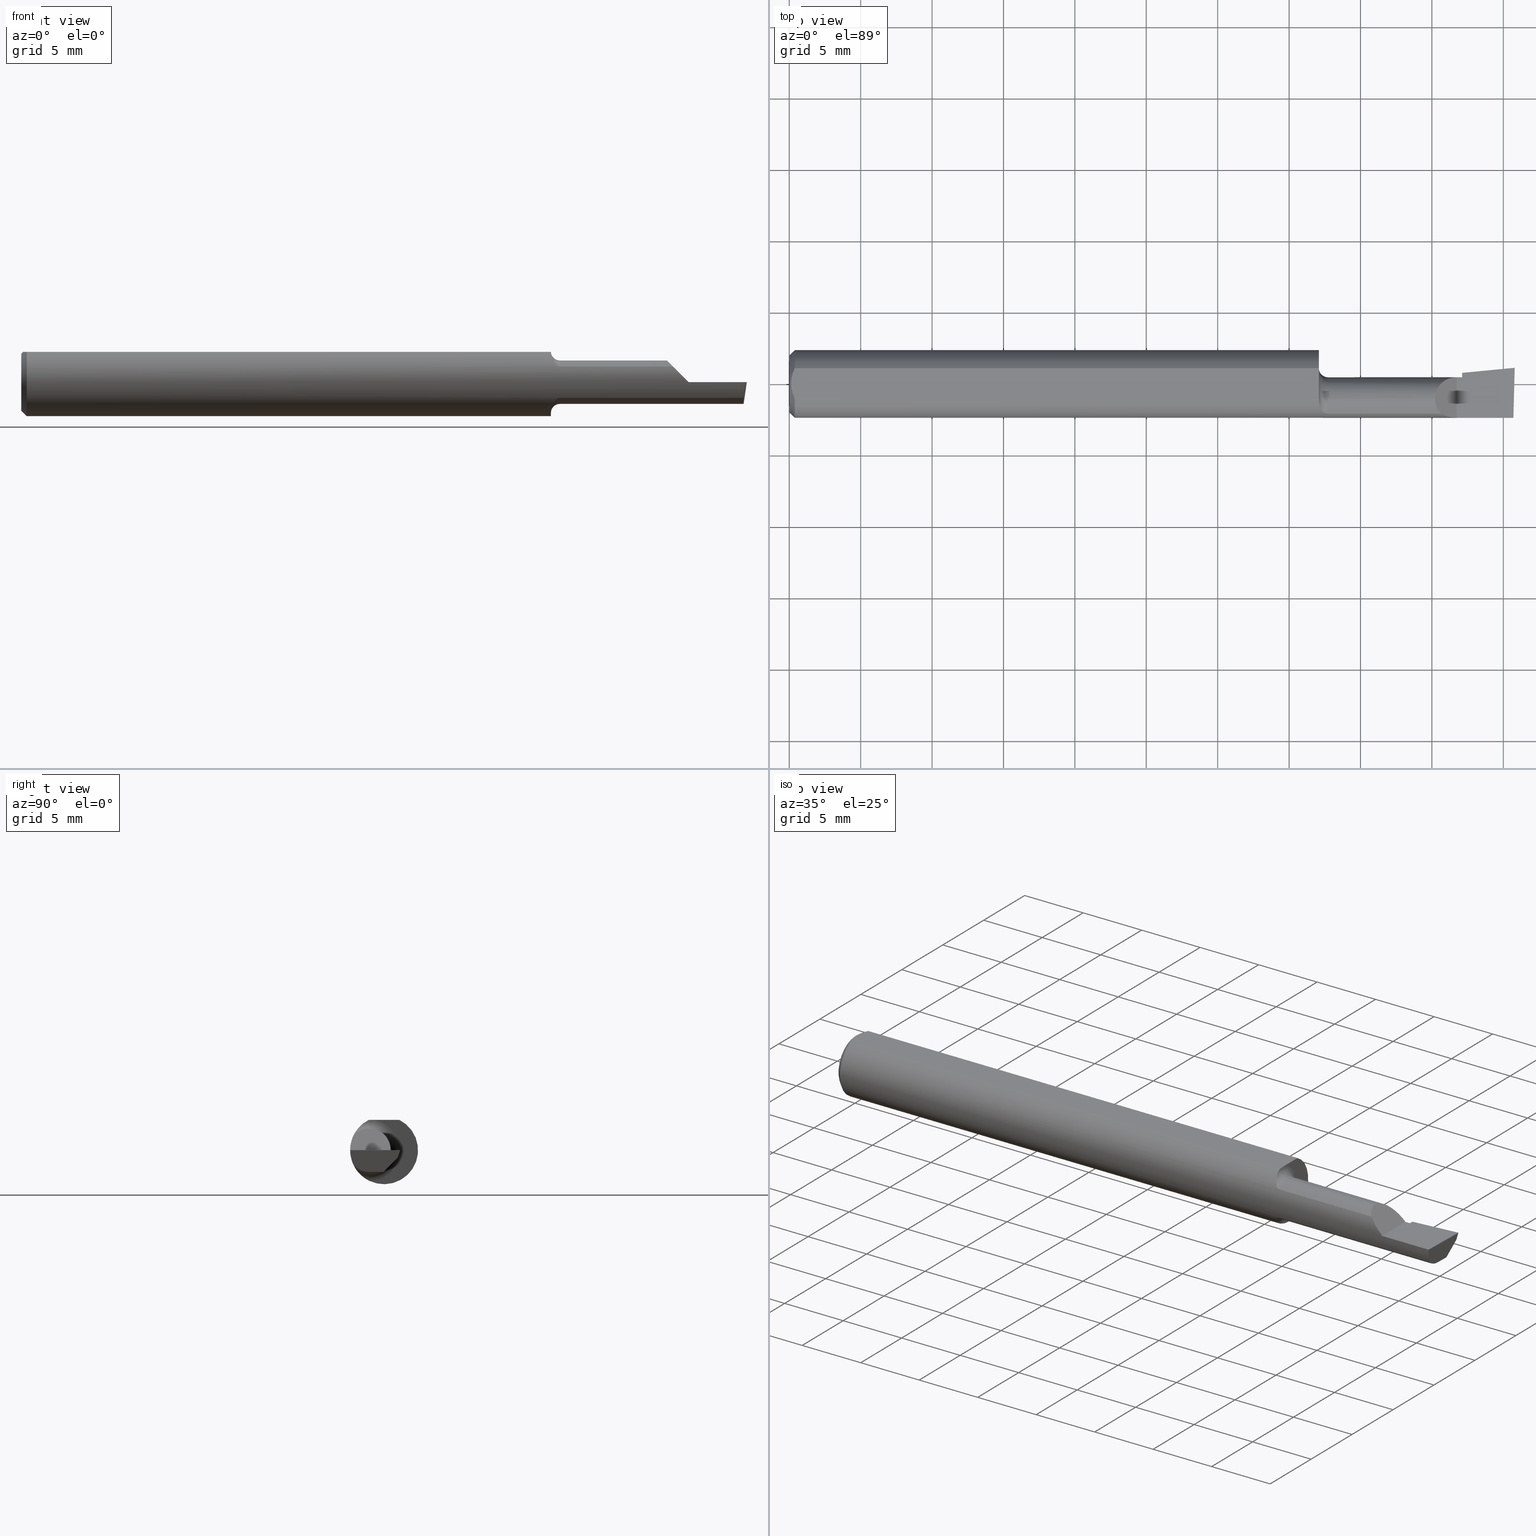
[diagram: canonical four-view strip — front | top / right | iso, engineering-drawing reading convention]
A machine part, canonical four-view strip (front | top / right | iso — engineering-drawing reading convention). The complete STEP part file that produces these views, byte-faithful:
ISO-10303-21;
HEADER;
FILE_DESCRIPTION (( 'STEP AP214' ),
    '1' );
FILE_NAME ('B140500.STEP',
    '2019-07-25T17:25:52',
    ( '' ),
    ( '' ),
    'SwSTEP 2.0',
    'SolidWorks 2018',
    '' );
FILE_SCHEMA (( 'AUTOMOTIVE_DESIGN' ));
ENDSEC;

DATA;
#1 = ORIENTED_EDGE ( 'NONE', *, *, #276, .F. ) ;
#2 = CARTESIAN_POINT ( 'NONE',  ( 1.475354605856553425, -0.08039319987159070091, -0.04797642756495486965 ) ) ;
#3 = VERTEX_POINT ( 'NONE', #570 ) ;
#4 = VERTEX_POINT ( 'NONE', #458 ) ;
#5 = FACE_OUTER_BOUND ( 'NONE', #53, .T. ) ;
#6 = CARTESIAN_POINT ( 'NONE',  ( 1.482100790213033426, -0.08307469879518095124, -0.04312255117789263320 ) ) ;
#7 = VERTEX_POINT ( 'NONE', #457 ) ;
#8 = CARTESIAN_POINT ( 'NONE',  ( 1.840000000000000080, -0.09360000000000005815, 1.959434878635762025E-17 ) ) ;
#9 = LINE ( 'NONE', #612, #77 ) ;
#10 = DIRECTION ( 'NONE',  ( 0.9953961983671800740, 0.09584575252021028391, -0.0000000000000000000 ) ) ;
#11 = AXIS2_PLACEMENT_3D ( 'NONE', #184, #492, #599 ) ;
#12 = VERTEX_POINT ( 'NONE', #64 ) ;
#13 = CARTESIAN_POINT ( 'NONE',  ( 1.990393312970557327, -0.04150000000000000216, -0.05990000000000000185 ) ) ;
#14 = CARTESIAN_POINT ( 'NONE',  ( 1.846299648997746123, 0.02345744519840442868, -0.02000000000000000042 ) ) ;
#15 = CARTESIAN_POINT ( 'NONE',  ( 1.992296147241039872, -0.2497982675158734178, -6.406435080701879992E-17 ) ) ;
#16 = CARTESIAN_POINT ( 'NONE',  ( 0.005000000000000225618, 0.007308422719211825694, 0.08360000000000000764 ) ) ;
#17 =( NAMED_UNIT ( * ) PLANE_ANGLE_UNIT ( ) SI_UNIT ( $, .RADIAN. ) );
#18 = ORIENTED_EDGE ( 'NONE', *, *, #397, .F. ) ;
#19 = CARTESIAN_POINT ( 'NONE',  ( 1.460033822879743370, -0.04159918775969437960, 0.08360000000000000764 ) ) ;
#20 = DIRECTION ( 'NONE',  ( 1.000000000000000000, 0.0000000000000000000, 0.0000000000000000000 ) ) ;
#21 = CARTESIAN_POINT ( 'NONE',  ( 1.854999999999999982, -0.01441399783868785485, -0.05990000000000000185 ) ) ;
#22 = VERTEX_POINT ( 'NONE', #296 ) ;
#23 = CARTESIAN_POINT ( 'NONE',  ( 1.463721006865826846, -0.06478644025684780761, 0.06776242552123266927 ) ) ;
#24 = VECTOR ( 'NONE', #215, 39.37007874015748143 ) ;
#25 = FILL_AREA_STYLE_COLOUR ( '', #552 ) ;
#26 = FACE_OUTER_BOUND ( 'NONE', #324, .T. ) ;
#27 =( GEOMETRIC_REPRESENTATION_CONTEXT ( 3 ) GLOBAL_UNCERTAINTY_ASSIGNED_CONTEXT ( ( #394 ) ) GLOBAL_UNIT_ASSIGNED_CONTEXT ( ( #219, #17, #572 ) ) REPRESENTATION_CONTEXT ( 'NONE', 'WORKASPACE' ) );
#28 = ADVANCED_FACE ( 'NONE', ( #513 ), #362, .T. ) ;
#29 = DIRECTION ( 'NONE',  ( 0.0000000000000000000, 0.0000000000000000000, 1.000000000000000000 ) ) ;
#30 = SURFACE_STYLE_USAGE ( .BOTH. , #170 ) ;
#31 = VERTEX_POINT ( 'NONE', #408 ) ;
#32 = DIRECTION ( 'NONE',  ( -0.1053106618241669151, -0.6976485211320175850, -0.7086580314005231918 ) ) ;
#33 = DIMENSIONAL_EXPONENTS ( 1.000000000000000000, 0.0000000000000000000, 0.0000000000000000000, 0.0000000000000000000, 0.0000000000000000000, 0.0000000000000000000, 0.0000000000000000000 ) ;
#34 = DIRECTION ( 'NONE',  ( -1.000000000000000000, -0.0000000000000000000, -0.0000000000000000000 ) ) ;
#35 = EDGE_CURVE ( 'NONE', #555, #317, #379, .T. ) ;
#36 = EDGE_LOOP ( 'NONE', ( #250, #70, #147, #532 ) ) ;
#37 = AXIS2_PLACEMENT_3D ( 'NONE', #529, #421, #310 ) ;
#38 = CARTESIAN_POINT ( 'NONE',  ( 0.0000000000000000000, -0.04150000000000000216, 0.0000000000000000000 ) ) ;
#39 = DIRECTION ( 'NONE',  ( 0.0000000000000000000, 0.0000000000000000000, 1.000000000000000000 ) ) ;
#40 = ORIENTED_EDGE ( 'NONE', *, *, #67, .T. ) ;
#41 = ORIENTED_EDGE ( 'NONE', *, *, #302, .T. ) ;
#42 = DIRECTION ( 'NONE',  ( 1.000000000000000000, 0.0000000000000000000, 0.0000000000000000000 ) ) ;
#43 = ORIENTED_EDGE ( 'NONE', *, *, #207, .F. ) ;
#44 = PRODUCT_DEFINITION_FORMATION_WITH_SPECIFIED_SOURCE ( 'ANY', '', #469, .NOT_KNOWN. ) ;
#45 = SURFACE_STYLE_FILL_AREA ( #158 ) ;
#46 = VERTEX_POINT ( 'NONE', #633 ) ;
#47 = AXIS2_PLACEMENT_3D ( 'NONE', #372, #316, #305 ) ;
#48 = EDGE_CURVE ( 'NONE', #319, #659, #655, .T. ) ;
#49 = B_SPLINE_CURVE_WITH_KNOTS ( 'NONE', 3,
 ( #274, #323, #130, #175, #381, #594 ),
 .UNSPECIFIED., .F., .F.,
 ( 4, 2, 4 ),
 ( 0.005785415439423114564, 0.006333348270144337384, 0.006881281100865560205 ),
 .UNSPECIFIED. ) ;
#50 = VERTEX_POINT ( 'NONE', #80 ) ;
#51 = ORIENTED_EDGE ( 'NONE', *, *, #351, .T. ) ;
#52 = CARTESIAN_POINT ( 'NONE',  ( 1.796877448822106649, -0.08307469879518077083, 0.04312255117789291076 ) ) ;
#53 = EDGE_LOOP ( 'NONE', ( #198, #653, #357, #343 ) ) ;
#54 = CIRCLE ( 'NONE', #273, 0.05989999999999996022 ) ;
#55 = CARTESIAN_POINT ( 'NONE',  ( 1.463605992736883632, -0.06448586599545333420, -0.06805619079784636094 ) ) ;
#56 = ORIENTED_EDGE ( 'NONE', *, *, #576, .F. ) ;
#57 = CARTESIAN_POINT ( 'NONE',  ( 1.484999999999999876, -0.08307469879518097899, -0.04312255117789268177 ) ) ;
#58 = CYLINDRICAL_SURFACE ( 'NONE', #233, 0.05989999999999998798 ) ;
#59 = AXIS2_PLACEMENT_3D ( 'NONE', #622, #511, #202 ) ;
#60 = CARTESIAN_POINT ( 'NONE',  ( 1.484999999999999876, -0.08307469879518063205, 0.04312255117789300790 ) ) ;
#61 = VERTEX_POINT ( 'NONE', #582 ) ;
#62 = CARTESIAN_POINT ( 'NONE',  ( 1.484999999999999876, -0.04149999999999999523, -0.08489999999999996161 ) ) ;
#63 = CARTESIAN_POINT ( 'NONE',  ( 1.484999999999999876, -0.04150000000000000216, 0.05989999999999996022 ) ) ;
#64 = CARTESIAN_POINT ( 'NONE',  ( 1.840000000000000080, -0.09360000000000005815, 1.959434878635762025E-17 ) ) ;
#65 = DIRECTION ( 'NONE',  ( 0.0000000000000000000, 0.0000000000000000000, 1.000000000000000000 ) ) ;
#66 = CARTESIAN_POINT ( 'NONE',  ( 1.467169981117899757, -0.07201923175886887352, 0.06001882546782344452 ) ) ;
#67 = EDGE_CURVE ( 'NONE', #4, #506, #405, .T. ) ;
#68 = AXIS2_PLACEMENT_3D ( 'NONE', #272, #487, #85 ) ;
#69 = ORIENTED_EDGE ( 'NONE', *, *, #499, .F. ) ;
#70 = ORIENTED_EDGE ( 'NONE', *, *, #517, .F. ) ;
#71 = CARTESIAN_POINT ( 'NONE',  ( 1.460033749376515422, -0.04199594133387062750, 0.08360000000000003539 ) ) ;
#72 = DIRECTION ( 'NONE',  ( -1.000000000000000000, -0.0000000000000000000, -0.0000000000000000000 ) ) ;
#73 = DIRECTION ( 'NONE',  ( -1.000000000000000000, -0.0000000000000000000, -0.0000000000000000000 ) ) ;
#74 = ORIENTED_EDGE ( 'NONE', *, *, #640, .T. ) ;
#75 = SURFACE_STYLE_FILL_AREA ( #539 ) ;
#76 = CARTESIAN_POINT ( 'NONE',  ( 1.988104162047463319, -0.07253870183878463607, -0.07191998023054103906 ) ) ;
#77 = VECTOR ( 'NONE', #660, 39.37007874015748143 ) ;
#78 = ORIENTED_EDGE ( 'NONE', *, *, #48, .T. ) ;
#79 = PRODUCT_RELATED_PRODUCT_CATEGORY ( 'part', '', ( #469 ) ) ;
#80 = CARTESIAN_POINT ( 'NONE',  ( 1.840000000000000080, 0.01839999999999989908, 1.959434878635762025E-17 ) ) ;
#81 = ORIENTED_EDGE ( 'NONE', *, *, #351, .F. ) ;
#82 = CARTESIAN_POINT ( 'NONE',  ( 2.000000000000003997, 0.04440000000001222136, 3.860442696046812169E-14 ) ) ;
#83 = EDGE_CURVE ( 'NONE', #448, #506, #168, .T. ) ;
#84 = LINE ( 'NONE', #114, #494 ) ;
#85 = DIRECTION ( 'NONE',  ( 0.0000000000000000000, 0.0000000000000000000, 1.000000000000000000 ) ) ;
#86 = CARTESIAN_POINT ( 'NONE',  ( 1.460010473476444526, -0.03163306423249835631, 0.08360000000000000764 ) ) ;
#87 = CARTESIAN_POINT ( 'NONE',  ( 0.01499999999999999598, 0.04209513035969837669, 0.08360000000000000764 ) ) ;
#88 = ADVANCED_FACE ( 'NONE', ( #425 ), #180, .F. ) ;
#89 = DIRECTION ( 'NONE',  ( 0.0000000000000000000, -0.2936076258024065688, -0.9559260233253794592 ) ) ;
#90 = EDGE_CURVE ( 'NONE', #342, #547, #318, .T. ) ;
#91 = ORIENTED_EDGE ( 'NONE', *, *, #484, .T. ) ;
#92 = DIRECTION ( 'NONE',  ( 0.0000000000000000000, 0.0000000000000000000, 1.000000000000000000 ) ) ;
#93 = DIRECTION ( 'NONE',  ( -1.000000000000000000, -0.0000000000000000000, -0.0000000000000000000 ) ) ;
#94 = VECTOR ( 'NONE', #279, 39.37007874015748143 ) ;
#95 = ORIENTED_EDGE ( 'NONE', *, *, #149, .F. ) ;
#96 = LINE ( 'NONE', #146, #453 ) ;
#97 = VERTEX_POINT ( 'NONE', #248 ) ;
#98 = PRESENTATION_LAYER_ASSIGNMENT (  '', '', ( #409 ) ) ;
#99 = EDGE_CURVE ( 'NONE', #247, #448, #239, .T. ) ;
#100 = ORIENTED_EDGE ( 'NONE', *, *, #192, .F. ) ;
#101 = B_SPLINE_CURVE_WITH_KNOTS ( 'NONE', 3,
 ( #57, #6, #293, #2, #249, #564, #152, #55, #353, #404, #406, #107 ),
 .UNSPECIFIED., .F., .F.,
 ( 4, 2, 2, 2, 2, 4 ),
 ( 1.963546462201886234E-07, 0.0002171101490734187974, 0.0004340239435006174387, 0.0008678515323550139082, 0.001301679121209410378, 0.001735506710063806739 ),
 .UNSPECIFIED. ) ;
#102 = AXIS2_PLACEMENT_3D ( 'NONE', #182, #652, #544 ) ;
#103 = VECTOR ( 'NONE', #385, 39.37007874015748143 ) ;
#104 = ORIENTED_EDGE ( 'NONE', *, *, #35, .F. ) ;
#105 = ORIENTED_EDGE ( 'NONE', *, *, #191, .T. ) ;
#106 = VECTOR ( 'NONE', #309, 39.37007874015748143 ) ;
#107 = CARTESIAN_POINT ( 'NONE',  ( 1.460020127471512996, -0.04149999999999998829, -0.08389702020930184245 ) ) ;
#108 = VECTOR ( 'NONE', #361, 39.37007874015748143 ) ;
#109 =( CONVERSION_BASED_UNIT ( 'INCH', #495 ) LENGTH_UNIT ( ) NAMED_UNIT ( #137 ) );
#110 = PLANE ( 'NONE',  #289 ) ;
#111 = AXIS2_PLACEMENT_3D ( 'NONE', #628, #256, #412 ) ;
#112 = CARTESIAN_POINT ( 'NONE',  ( 0.01499999999999999598, 0.0000000000000000000, -0.09360000000000001652 ) ) ;
#113 = B_SPLINE_CURVE_WITH_KNOTS ( 'NONE', 3,
 ( #262, #19, #306, #71, #217 ),
 .UNSPECIFIED., .F., .F.,
 ( 4, 1, 4 ),
 ( 0.001137327269498854699, 0.001144877036798491862, 0.001152426804098129025 ),
 .UNSPECIFIED. ) ;
#114 = CARTESIAN_POINT ( 'NONE',  ( 1.990399895785905926, -0.04124861242399380928, -0.05990000000000000185 ) ) ;
#115 = DIRECTION ( 'NONE',  ( -1.000000000000000000, 5.691349986800549142E-18, -0.0000000000000000000 ) ) ;
#116 = DIRECTION ( 'NONE',  ( -0.02617694830786435750, -0.9996573249755573709, 0.0000000000000000000 ) ) ;
#117 = ORIENTED_EDGE ( 'NONE', *, *, #439, .T. ) ;
#118 = CARTESIAN_POINT ( 'NONE',  ( 1.991446623798936333, -0.001275682303322546755, -0.05990000000000000185 ) ) ;
#119 = PLANE ( 'NONE',  #171 ) ;
#120 = CARTESIAN_POINT ( 'NONE',  ( 1.460020127471512996, -0.04149999999999998829, -0.08389702020930184245 ) ) ;
#121 = CARTESIAN_POINT ( 'NONE',  ( 1.991365359011874947, -0.08307469879518075695, -0.04312255117789293157 ) ) ;
#122 =( LENGTH_UNIT ( ) NAMED_UNIT ( * ) SI_UNIT ( $, .METRE. ) );
#123 = ORIENTED_EDGE ( 'NONE', *, *, #99, .F. ) ;
#124 = DIRECTION ( 'NONE',  ( 0.9953961983671787417, 0.09584575252022466130, -5.467869873542577569E-16 ) ) ;
#125 = ORIENTED_EDGE ( 'NONE', *, *, #320, .T. ) ;
#126 = CARTESIAN_POINT ( 'NONE',  ( 0.005000000000000236026, 1.025183009042025117E-17, 0.08360000000000000764 ) ) ;
#127 = LINE ( 'NONE', #112, #376 ) ;
#128 = ORIENTED_EDGE ( 'NONE', *, *, #566, .F. ) ;
#129 = CARTESIAN_POINT ( 'NONE',  ( 1.854999999999999982, -0.04150000000000000216, -0.05990000000000000185 ) ) ;
#130 = CARTESIAN_POINT ( 'NONE',  ( 0.009539353699420828961, -0.02875682547511369466, 0.08360000000000000764 ) ) ;
#131 = ADVANCED_FACE ( 'NONE', ( #153 ), #474, .T. ) ;
#132 = CARTESIAN_POINT ( 'NONE',  ( 1.460033822879743814, -0.03903342675892663288, 0.08360000000000000764 ) ) ;
#133 = ORIENTED_EDGE ( 'NONE', *, *, #347, .F. ) ;
#134 = ORIENTED_EDGE ( 'NONE', *, *, #520, .F. ) ;
#135 = CARTESIAN_POINT ( 'NONE',  ( 1.854999999999999982, -0.04150000000000000216, 0.0000000000000000000 ) ) ;
#136 = DIRECTION ( 'NONE',  ( 0.0000000000000000000, 0.0000000000000000000, 1.000000000000000000 ) ) ;
#137 = DIMENSIONAL_EXPONENTS ( 1.000000000000000000, 0.0000000000000000000, 0.0000000000000000000, 0.0000000000000000000, 0.0000000000000000000, 0.0000000000000000000, 0.0000000000000000000 ) ;
#138 = DIRECTION ( 'NONE',  ( 0.0000000000000000000, 0.0000000000000000000, 1.000000000000000000 ) ) ;
#139 = EDGE_LOOP ( 'NONE', ( #51, #91, #290, #282, #303, #583 ) ) ;
#140 = FACE_OUTER_BOUND ( 'NONE', #521, .T. ) ;
#141 = EDGE_LOOP ( 'NONE', ( #43, #162, #535, #100, #258, #56, #560 ) ) ;
#142 = AXIS2_PLACEMENT_3D ( 'NONE', #315, #159, #307 ) ;
#143 = VECTOR ( 'NONE', #157, 39.37007874015748143 ) ;
#144 = ORIENTED_EDGE ( 'NONE', *, *, #502, .F. ) ;
#145 = AXIS2_PLACEMENT_3D ( 'NONE', #465, #73, #631 ) ;
#146 = CARTESIAN_POINT ( 'NONE',  ( 5.659797890829555466E-31, 0.01839999999999997540, 1.030335658007946046E-15 ) ) ;
#147 = ORIENTED_EDGE ( 'NONE', *, *, #528, .T. ) ;
#148 = PLANE ( 'NONE',  #380 ) ;
#149 = EDGE_CURVE ( 'NONE', #651, #659, #584, .T. ) ;
#150 = ORIENTED_EDGE ( 'NONE', *, *, #302, .F. ) ;
#151 = LINE ( 'NONE', #333, #548 ) ;
#152 = CARTESIAN_POINT ( 'NONE',  ( 1.467076397983110958, -0.07187891021191490648, -0.06019546731975674442 ) ) ;
#153 = FACE_OUTER_BOUND ( 'NONE', #615, .T. ) ;
#154 = CARTESIAN_POINT ( 'NONE',  ( 1.796877448822106649, -0.08307469879518077083, 0.04312255117789291076 ) ) ;
#155 = CIRCLE ( 'NONE', #656, 0.07859999999999965625 ) ;
#156 = LENGTH_MEASURE_WITH_UNIT ( LENGTH_MEASURE( 0.02539999999999999897 ), #209 );
#157 = DIRECTION ( 'NONE',  ( -0.1240019227989208328, -0.3022330132596642849, -0.9451342385281331637 ) ) ;
#158 = FILL_AREA_STYLE ('',( #163 ) ) ;
#159 = DIRECTION ( 'NONE',  ( -0.7071067811865433539, 0.0000000000000000000, -0.7071067811865516806 ) ) ;
#160 = DIRECTION ( 'NONE',  ( 0.0000000000000000000, 0.0000000000000000000, -1.000000000000000000 ) ) ;
#161 = CARTESIAN_POINT ( 'NONE',  ( 1.854999999999999982, 0.03726901833842542755, -0.006627062419125365027 ) ) ;
#162 = ORIENTED_EDGE ( 'NONE', *, *, #354, .F. ) ;
#163 = FILL_AREA_STYLE_COLOUR ( '', #477 ) ;
#164 = AXIS2_PLACEMENT_3D ( 'NONE', #440, #34, #138 ) ;
#165 = CARTESIAN_POINT ( 'NONE',  ( 0.005981829149300843529, 0.01454044632356567453, 0.08360000000000003539 ) ) ;
#166 = CARTESIAN_POINT ( 'NONE',  ( 1.854999999999999982, 0.01839999999999999969, 1.030335658007946440E-15 ) ) ;
#167 = EDGE_LOOP ( 'NONE', ( #454, #367, #441, #341 ) ) ;
#168 = LINE ( 'NONE', #383, #335 ) ;
#169 = EDGE_LOOP ( 'NONE', ( #578, #611, #501, #244 ) ) ;
#170 = SURFACE_SIDE_STYLE ('',( #75 ) ) ;
#171 = AXIS2_PLACEMENT_3D ( 'NONE', #422, #471, #20 ) ;
#172 = FACE_OUTER_BOUND ( 'NONE', #601, .T. ) ;
#173 = EDGE_CURVE ( 'NONE', #587, #3, #186, .T. ) ;
#174 = ORIENTED_EDGE ( 'NONE', *, *, #286, .T. ) ;
#175 = CARTESIAN_POINT ( 'NONE',  ( 0.005975039161239529238, -0.01453776427033147065, 0.08359999999999997988 ) ) ;
#176 = DIRECTION ( 'NONE',  ( -1.000000000000000000, -0.0000000000000000000, -0.0000000000000000000 ) ) ;
#177 = EDGE_CURVE ( 'NONE', #587, #395, #444, .T. ) ;
#178 = ADVANCED_FACE ( 'NONE', ( #567 ), #298, .T. ) ;
#179 = CARTESIAN_POINT ( 'NONE',  ( 2.000000000000000000, -0.2500000000000000555, -6.829619984160658046E-17 ) ) ;
#180 = PLANE ( 'NONE',  #496 ) ;
#181 = ADVANCED_FACE ( 'NONE', ( #26 ), #365, .T. ) ;
#182 = CARTESIAN_POINT ( 'NONE',  ( 0.01499999999999999598, 0.0000000000000000000, 0.0000000000000000000 ) ) ;
#183 = EDGE_CURVE ( 'NONE', #551, #195, #113, .T. ) ;
#184 = CARTESIAN_POINT ( 'NONE',  ( 0.01499999999999999598, 0.0000000000000000000, 0.0000000000000000000 ) ) ;
#185 = EDGE_LOOP ( 'NONE', ( #1, #241, #18, #133, #134, #443 ) ) ;
#186 = LINE ( 'NONE', #577, #270 ) ;
#187 = DIRECTION ( 'NONE',  ( 0.0000000000000000000, 0.0000000000000000000, 1.000000000000000000 ) ) ;
#188 = CIRCLE ( 'NONE', #68, 0.07859999999999965625 ) ;
#189 = VECTOR ( 'NONE', #423, 39.37007874015748143 ) ;
#190 = AXIS2_PLACEMENT_3D ( 'NONE', #62, #368, #580 ) ;
#191 = EDGE_CURVE ( 'NONE', #651, #228, #574, .T. ) ;
#192 = EDGE_CURVE ( 'NONE', #317, #242, #558, .T. ) ;
#193 = PLANE ( 'NONE',  #142 ) ;
#194 = AXIS2_PLACEMENT_3D ( 'NONE', #254, #259, #626 ) ;
#195 = VERTEX_POINT ( 'NONE', #540 ) ;
#196 = ORIENTED_EDGE ( 'NONE', *, *, #192, .T. ) ;
#197 = CARTESIAN_POINT ( 'NONE',  ( 1.840000000000000080, -0.2500000000000000555, 1.959434878635762025E-17 ) ) ;
#198 = ORIENTED_EDGE ( 'NONE', *, *, #397, .T. ) ;
#199 = PRESENTATION_STYLE_ASSIGNMENT (( #30 ) ) ;
#200 = EDGE_LOOP ( 'NONE', ( #95, #41, #498, #334, #658, #557, #509, #480, #390, #174, #636, #542, #446 ) ) ;
#201 = PRESENTATION_STYLE_ASSIGNMENT (( #311 ) ) ;
#202 = DIRECTION ( 'NONE',  ( 0.0000000000000000000, 0.0000000000000000000, 1.000000000000000000 ) ) ;
#203 = ORIENTED_EDGE ( 'NONE', *, *, #280, .T. ) ;
#204 = AXIS2_PLACEMENT_3D ( 'NONE', #505, #613, #205 ) ;
#205 = DIRECTION ( 'NONE',  ( 0.0000000000000000000, 0.0000000000000000000, 1.000000000000000000 ) ) ;
#206 = VECTOR ( 'NONE', #366, 39.37007874015749564 ) ;
#207 = EDGE_CURVE ( 'NONE', #97, #551, #464, .T. ) ;
#208 = CARTESIAN_POINT ( 'NONE',  ( 1.854999999999999982, 0.02429519371539584291, -0.02000000000000000042 ) ) ;
#209 =( LENGTH_UNIT ( ) NAMED_UNIT ( * ) SI_UNIT ( $, .METRE. ) );
#210 = CARTESIAN_POINT ( 'NONE',  ( 1.479521451227007400, -0.08233651528522391294, 0.04455777109850302120 ) ) ;
#211 = CARTESIAN_POINT ( 'NONE',  ( 1.469277238843510025, -0.07518688180261749732, 0.05595855205958090439 ) ) ;
#212 = MANIFOLD_SOLID_BREP ( 'Extrude7', #374 ) ;
#213 = CARTESIAN_POINT ( 'NONE',  ( 0.0000000000000000000, 0.0000000000000000000, 0.0000000000000000000 ) ) ;
#214 = ORIENTED_EDGE ( 'NONE', *, *, #439, .F. ) ;
#215 = DIRECTION ( 'NONE',  ( -1.000000000000000000, -0.0000000000000000000, -0.0000000000000000000 ) ) ;
#216 = DIRECTION ( 'NONE',  ( 0.0000000000000000000, 1.000000000000000000, -1.189000693621284344E-16 ) ) ;
#217 = CARTESIAN_POINT ( 'NONE',  ( 1.460033712670300021, -0.04209513035969835587, 0.08360000000000000764 ) ) ;
#218 = LINE ( 'NONE', #231, #94 ) ;
#219 =( CONVERSION_BASED_UNIT ( 'INCH', #156 ) LENGTH_UNIT ( ) NAMED_UNIT ( #322 ) );
#220 = CARTESIAN_POINT ( 'NONE',  ( 1.460661035553191267, -0.05185656404701177724, 0.07811662714583193778 ) ) ;
#221 = VERTEX_POINT ( 'NONE', #82 ) ;
#222 = CARTESIAN_POINT ( 'NONE',  ( 0.01499999999999999598, 0.0000000000000000000, 0.0000000000000000000 ) ) ;
#223 = ORIENTED_EDGE ( 'NONE', *, *, #354, .T. ) ;
#224 = CIRCLE ( 'NONE', #291, 0.05990000000000000185 ) ;
#225 = PLANE ( 'NONE',  #415 ) ;
#226 = CARTESIAN_POINT ( 'NONE',  ( 0.01499999999999999598, 0.0000000000000000000, 0.0000000000000000000 ) ) ;
#227 = CARTESIAN_POINT ( 'NONE',  ( 0.01499999999999999598, 0.04209513035969837669, 0.08360000000000000764 ) ) ;
#228 = VERTEX_POINT ( 'NONE', #229 ) ;
#229 = CARTESIAN_POINT ( 'NONE',  ( 1.990393312970557327, -0.04150000000000000216, -0.05990000000000000185 ) ) ;
#230 = DIRECTION ( 'NONE',  ( -1.000000000000000000, 0.0000000000000000000, 5.493159289247764363E-16 ) ) ;
#231 = CARTESIAN_POINT ( 'NONE',  ( 0.0000000000000000000, 0.04209513035969837669, 0.08360000000000000764 ) ) ;
#232 = EDGE_LOOP ( 'NONE', ( #565, #223, #117 ) ) ;
#233 = AXIS2_PLACEMENT_3D ( 'NONE', #38, #236, #92 ) ;
#234 = DIRECTION ( 'NONE',  ( 0.0000000000000000000, 1.000000000000000000, 0.0000000000000000000 ) ) ;
#235 = ORIENTED_EDGE ( 'NONE', *, *, #603, .T. ) ;
#236 = DIRECTION ( 'NONE',  ( -1.000000000000000000, -0.0000000000000000000, -0.0000000000000000000 ) ) ;
#237 = EDGE_LOOP ( 'NONE', ( #105, #144, #629, #128, #618, #150 ) ) ;
#238 = LINE ( 'NONE', #161, #346 ) ;
#239 = LINE ( 'NONE', #648, #108 ) ;
#240 = AXIS2_PLACEMENT_3D ( 'NONE', #635, #467, #522 ) ;
#241 = ORIENTED_EDGE ( 'NONE', *, *, #488, .T. ) ;
#242 = VERTEX_POINT ( 'NONE', #227 ) ;
#243 = CARTESIAN_POINT ( 'NONE',  ( 1.780099999999999349, -0.04150000000000000216, 0.05989999999999998798 ) ) ;
#244 = ORIENTED_EDGE ( 'NONE', *, *, #173, .T. ) ;
#245 = LINE ( 'NONE', #575, #360 ) ;
#246 = CARTESIAN_POINT ( 'NONE',  ( 1.824917075065774830, -0.09360000000000001652, 0.01508292493422502302 ) ) ;
#247 = VERTEX_POINT ( 'NONE', #129 ) ;
#248 = CARTESIAN_POINT ( 'NONE',  ( 1.459999999999999742, -0.02669966216601827105, 0.08360000000000000764 ) ) ;
#249 = CARTESIAN_POINT ( 'NONE',  ( 1.473672693420809754, -0.07917899622880059107, -0.04997532113045946578 ) ) ;
#250 = ORIENTED_EDGE ( 'NONE', *, *, #536, .F. ) ;
#251 = CARTESIAN_POINT ( 'NONE',  ( 0.01499999999999999598, 1.146269404001922775E-17, 0.09360000000000001652 ) ) ;
#252 = VECTOR ( 'NONE', #297, 39.37007874015748143 ) ;
#253 = DIRECTION ( 'NONE',  ( -1.000000000000000000, -0.0000000000000000000, -0.0000000000000000000 ) ) ;
#254 = CARTESIAN_POINT ( 'NONE',  ( 0.0000000000000000000, -0.04150000000000000216, 0.0000000000000000000 ) ) ;
#255 = APPLICATION_CONTEXT ( 'automotive_design' ) ;
#256 = DIRECTION ( 'NONE',  ( -1.000000000000000000, -0.0000000000000000000, -0.0000000000000000000 ) ) ;
#257 = ORIENTED_EDGE ( 'NONE', *, *, #99, .T. ) ;
#258 = ORIENTED_EDGE ( 'NONE', *, *, #313, .F. ) ;
#259 = DIRECTION ( 'NONE',  ( -1.000000000000000000, -0.0000000000000000000, -0.0000000000000000000 ) ) ;
#260 = CARTESIAN_POINT ( 'NONE',  ( 0.0000000000000000000, 0.0000000000000000000, 0.0000000000000000000 ) ) ;
#261 = DIRECTION ( 'NONE',  ( 0.0000000000000000000, -1.000000000000000000, 0.0000000000000000000 ) ) ;
#262 = CARTESIAN_POINT ( 'NONE',  ( 1.460033822879743592, -0.04150000000000000216, 0.08360000000000000764 ) ) ;
#263 =( NAMED_UNIT ( * ) SI_UNIT ( $, .STERADIAN. ) SOLID_ANGLE_UNIT ( ) );
#264 = ORIENTED_EDGE ( 'NONE', *, *, #502, .T. ) ;
#265 = PRESENTATION_LAYER_ASSIGNMENT (  '', '', ( #336 ) ) ;
#266 = CARTESIAN_POINT ( 'NONE',  ( 1.989982066092358171, -0.05720488466914006032, -0.05989999999999998798 ) ) ;
#267 = DIRECTION ( 'NONE',  ( 1.000000000000000000, 0.0000000000000000000, 0.0000000000000000000 ) ) ;
#268 = CARTESIAN_POINT ( 'NONE',  ( 1.459999999999999742, -0.03946024096385552377, -0.08487549341873930342 ) ) ;
#269 = CIRCLE ( 'NONE', #554, 0.02500000000000007425 ) ;
#270 = VECTOR ( 'NONE', #470, 39.37007874015748143 ) ;
#271 = UNCERTAINTY_MEASURE_WITH_UNIT (LENGTH_MEASURE( 1.000000000000000082E-05 ), #109, 'distance_accuracy_value', 'NONE');
#272 = CARTESIAN_POINT ( 'NONE',  ( 0.0000000000000000000, 0.0000000000000000000, 0.0000000000000000000 ) ) ;
#273 = AXIS2_PLACEMENT_3D ( 'NONE', #468, #253, #65 ) ;
#274 = CARTESIAN_POINT ( 'NONE',  ( 0.01499999999999999944, -0.04209513035969835587, 0.08360000000000000764 ) ) ;
#275 = LINE ( 'NONE', #461, #143 ) ;
#276 = EDGE_CURVE ( 'NONE', #22, #12, #605, .T. ) ;
#277 = EDGE_LOOP ( 'NONE', ( #617, #418, #78 ) ) ;
#278 = PLANE ( 'NONE',  #387 ) ;
#279 = DIRECTION ( 'NONE',  ( 1.000000000000000000, 0.0000000000000000000, 0.0000000000000000000 ) ) ;
#280 = EDGE_CURVE ( 'NONE', #355, #555, #188, .T. ) ;
#281 = ADVANCED_FACE ( 'NONE', ( #632 ), #596, .F. ) ;
#282 = ORIENTED_EDGE ( 'NONE', *, *, #435, .F. ) ;
#283 = ADVANCED_FACE ( 'NONE', ( #650 ), #225, .F. ) ;
#284 = CARTESIAN_POINT ( 'NONE',  ( 1.845713589253087594, 0.02954390835936741844, -6.829619984160658046E-17 ) ) ;
#285 = VECTOR ( 'NONE', #391, 39.37007874015748143 ) ;
#286 = EDGE_CURVE ( 'NONE', #242, #7, #218, .T. ) ;
#287 = CARTESIAN_POINT ( 'NONE',  ( 0.01499999999999999598, 0.0000000000000000000, -0.09360000000000001652 ) ) ;
#288 = ORIENTED_EDGE ( 'NONE', *, *, #207, .T. ) ;
#289 = AXIS2_PLACEMENT_3D ( 'NONE', #627, #370, #216 ) ;
#290 = ORIENTED_EDGE ( 'NONE', *, *, #621, .F. ) ;
#291 = AXIS2_PLACEMENT_3D ( 'NONE', #135, #337, #39 ) ;
#292 = EDGE_LOOP ( 'NONE', ( #363, #478, #641, #431, #401 ) ) ;
#293 = CARTESIAN_POINT ( 'NONE',  ( 1.479498465877713942, -0.08233174416856396671, -0.04456779206614371047 ) ) ;
#294 = ORIENTED_EDGE ( 'NONE', *, *, #621, .T. ) ;
#295 = ORIENTED_EDGE ( 'NONE', *, *, #313, .T. ) ;
#296 = CARTESIAN_POINT ( 'NONE',  ( 1.996386342823452287, -0.09360000000000009979, -6.634435288474569554E-17 ) ) ;
#297 = DIRECTION ( 'NONE',  ( -0.0000000000000000000, 1.000000000000000000, -0.0000000000000000000 ) ) ;
#298 = CYLINDRICAL_SURFACE ( 'NONE', #194, 0.05989999999999998798 ) ;
#299 = TOROIDAL_SURFACE ( 'NONE', #204, 0.08489999999999996161, 0.02500000000000007078 ) ;
#300 =( GEOMETRIC_REPRESENTATION_CONTEXT ( 3 ) GLOBAL_UNCERTAINTY_ASSIGNED_CONTEXT ( ( #271 ) ) GLOBAL_UNIT_ASSIGNED_CONTEXT ( ( #109, #475, #263 ) ) REPRESENTATION_CONTEXT ( 'NONE', 'WORKASPACE' ) );
#301 = CARTESIAN_POINT ( 'NONE',  ( 1.840000000000000080, 0.01839999999999989908, 1.959434878635762025E-17 ) ) ;
#302 = EDGE_CURVE ( 'NONE', #651, #22, #610, .T. ) ;
#303 = ORIENTED_EDGE ( 'NONE', *, *, #562, .T. ) ;
#304 = APPLICATION_PROTOCOL_DEFINITION ( 'draft international standard', 'automotive_design', 1998, #321 ) ;
#305 = DIRECTION ( 'NONE',  ( 0.0000000000000000000, 0.0000000000000000000, -1.000000000000000000 ) ) ;
#306 = CARTESIAN_POINT ( 'NONE',  ( 1.460033804492674392, -0.04179756391332128951, 0.08360000000000000764 ) ) ;
#307 = DIRECTION ( 'NONE',  ( -0.7071067811865516806, 0.0000000000000000000, 0.7071067811865433539 ) ) ;
#308 = AXIS2_PLACEMENT_3D ( 'NONE', #222, #490, #160 ) ;
#309 = DIRECTION ( 'NONE',  ( -1.000000000000000000, -0.0000000000000000000, -0.0000000000000000000 ) ) ;
#310 = DIRECTION ( 'NONE',  ( -0.0000000000000000000, 0.0000000000000000000, 1.000000000000000000 ) ) ;
#311 = SURFACE_STYLE_USAGE ( .BOTH. , #624 ) ;
#312 = DIRECTION ( 'NONE',  ( 0.0000000000000000000, 0.0000000000000000000, -1.000000000000000000 ) ) ;
#313 = EDGE_CURVE ( 'NONE', #547, #317, #49, .T. ) ;
#314 = CARTESIAN_POINT ( 'NONE',  ( 1.669999999999999929, -0.08307469879518075695, -0.04312255117789293157 ) ) ;
#315 = CARTESIAN_POINT ( 'NONE',  ( 1.840000000000000080, -0.2500000000000000555, 1.959434878635762025E-17 ) ) ;
#316 = DIRECTION ( 'NONE',  ( 1.000000000000000000, 0.0000000000000000000, 0.0000000000000000000 ) ) ;
#317 = VERTEX_POINT ( 'NONE', #126 ) ;
#318 = CIRCLE ( 'NONE', #598, 0.09360000000000001652 ) ;
#319 = VERTEX_POINT ( 'NONE', #326 ) ;
#320 = EDGE_CURVE ( 'NONE', #242, #342, #369, .T. ) ;
#321 = APPLICATION_CONTEXT ( 'automotive_design' ) ;
#322 = DIMENSIONAL_EXPONENTS ( 1.000000000000000000, 0.0000000000000000000, 0.0000000000000000000, 0.0000000000000000000, 0.0000000000000000000, 0.0000000000000000000, 0.0000000000000000000 ) ;
#323 = CARTESIAN_POINT ( 'NONE',  ( 0.01206089165507025218, -0.03555991978469313225, 0.08360000000000000764 ) ) ;
#324 = EDGE_LOOP ( 'NONE', ( #69, #123, #81, #359, #388 ) ) ;
#325 = ADVANCED_FACE ( 'NONE', ( #339 ), #278, .F. ) ;
#326 = CARTESIAN_POINT ( 'NONE',  ( 1.484999999999999876, -0.04149999999999999523, -0.05989999999999996022 ) ) ;
#327 = VECTOR ( 'NONE', #124, 39.37007874015748143 ) ;
#328 = ADVANCED_FACE ( 'NONE', ( #550 ), #58, .T. ) ;
#329 = AXIS2_PLACEMENT_3D ( 'NONE', #260, #630, #267 ) ;
#330 = ADVANCED_FACE ( 'NONE', ( #403 ), #609, .F. ) ;
#331 = CARTESIAN_POINT ( 'NONE',  ( 1.846299648997746123, 0.02345744519840442868, -0.02000000000000000042 ) ) ;
#332 = ADVANCED_FACE ( 'NONE', ( #5 ), #393, .F. ) ;
#333 = CARTESIAN_POINT ( 'NONE',  ( 1.854999999999999982, -0.2500000000000000555, 1.135460985248596835E-17 ) ) ;
#334 = ORIENTED_EDGE ( 'NONE', *, *, #517, .T. ) ;
#335 = VECTOR ( 'NONE', #489, 39.37007874015748854 ) ;
#336 = STYLED_ITEM ( 'NONE', ( #199 ), #212 ) ;
#337 = DIRECTION ( 'NONE',  ( -1.000000000000000000, -0.0000000000000000000, -0.0000000000000000000 ) ) ;
#338 = EDGE_LOOP ( 'NONE', ( #104, #398, #348, #602, #295 ) ) ;
#339 = FACE_OUTER_BOUND ( 'NONE', #647, .T. ) ;
#340 = LINE ( 'NONE', #197, #252 ) ;
#341 = ORIENTED_EDGE ( 'NONE', *, *, #177, .T. ) ;
#342 = VERTEX_POINT ( 'NONE', #287 ) ;
#343 = ORIENTED_EDGE ( 'NONE', *, *, #466, .T. ) ;
#344 = ORIENTED_EDGE ( 'NONE', *, *, #83, .T. ) ;
#345 = PRODUCT_DEFINITION ( 'UNKNOWN', '', #44, #416 ) ;
#346 = VECTOR ( 'NONE', #526, 39.37007874015748854 ) ;
#347 = EDGE_CURVE ( 'NONE', #607, #31, #151, .T. ) ;
#348 = ORIENTED_EDGE ( 'NONE', *, *, #486, .T. ) ;
#349 =( GEOMETRIC_REPRESENTATION_CONTEXT ( 3 ) GLOBAL_UNCERTAINTY_ASSIGNED_CONTEXT ( ( #524 ) ) GLOBAL_UNIT_ASSIGNED_CONTEXT ( ( #481, #644, #378 ) ) REPRESENTATION_CONTEXT ( 'NONE', 'WORKASPACE' ) );
#350 = ORIENTED_EDGE ( 'NONE', *, *, #83, .F. ) ;
#351 = EDGE_CURVE ( 'NONE', #607, #247, #224, .T. ) ;
#352 = VECTOR ( 'NONE', #115, 39.37007874015748143 ) ;
#353 = CARTESIAN_POINT ( 'NONE',  ( 1.462355770679723221, -0.06040702343486038794, -0.07171535245186137775 ) ) ;
#354 = EDGE_CURVE ( 'NONE', #7, #97, #392, .T. ) ;
#355 = VERTEX_POINT ( 'NONE', #649 ) ;
#356 = CARTESIAN_POINT ( 'NONE',  ( 0.01499999999999999944, -0.04209513035969835587, 0.08360000000000000764 ) ) ;
#357 = ORIENTED_EDGE ( 'NONE', *, *, #603, .F. ) ;
#358 = B_SPLINE_CURVE_WITH_KNOTS ( 'NONE', 3,
 ( #463, #581, #220, #623, #23, #66, #211, #419, #625, #210, #531, #60 ),
 .UNSPECIFIED., .F., .F.,
 ( 4, 2, 2, 2, 2, 4 ),
 ( 4.385794166508631868E-07, 0.0004249653867803445360, 0.0008494921941440379543, 0.001274019001507731372, 0.001486282405189578082, 0.001698545808871425008 ),
 .UNSPECIFIED. ) ;
#359 = ORIENTED_EDGE ( 'NONE', *, *, #347, .T. ) ;
#360 = VECTOR ( 'NONE', #573, 39.37007874015748854 ) ;
#361 = DIRECTION ( 'NONE',  ( 0.0000000000000000000, 1.000000000000000000, 0.0000000000000000000 ) ) ;
#362 = CYLINDRICAL_SURFACE ( 'NONE', #59, 0.05989999999999998798 ) ;
#363 = ORIENTED_EDGE ( 'NONE', *, *, #484, .F. ) ;
#364 = CARTESIAN_POINT ( 'NONE',  ( 0.0000000000000000000, -0.04149999999999999523, -0.05989999999999998798 ) ) ;
#365 = PLANE ( 'NONE',  #37 ) ;
#366 = DIRECTION ( 'NONE',  ( 0.02617694830786435750, 0.9996573249755573709, -1.459184416195624665E-17 ) ) ;
#367 = ORIENTED_EDGE ( 'NONE', *, *, #183, .T. ) ;
#368 = DIRECTION ( 'NONE',  ( -0.0000000000000000000, 1.000000000000000000, 1.224646799147353207E-16 ) ) ;
#369 = CIRCLE ( 'NONE', #11, 0.09360000000000001652 ) ;
#370 = DIRECTION ( 'NONE',  ( 0.0000000000000000000, -1.189000693621284344E-16, -1.000000000000000000 ) ) ;
#371 = AXIS2_PLACEMENT_3D ( 'NONE', #331, #588, #375 ) ;
#372 = CARTESIAN_POINT ( 'NONE',  ( 1.459999999999999742, 0.0000000000000000000, 0.0000000000000000000 ) ) ;
#373 = ADVANCED_BREP_SHAPE_REPRESENTATION ( 'B140500', ( #212, #329 ), #300 ) ;
#374 = CLOSED_SHELL ( 'NONE', ( #328, #28, #545, #432, #131, #377, #646, #88, #590, #325, #384, #330, #538, #181, #178, #597, #332, #281, #283 ) ) ;
#375 = DIRECTION ( 'NONE',  ( 0.0000000000000000000, -0.6963153109074925462, -0.7177360153954946975 ) ) ;
#376 = VECTOR ( 'NONE', #519, 39.37007874015748143 ) ;
#377 = ADVANCED_FACE ( 'NONE', ( #510 ), #654, .T. ) ;
#378 =( NAMED_UNIT ( * ) SI_UNIT ( $, .STERADIAN. ) SOLID_ANGLE_UNIT ( ) );
#379 = LINE ( 'NONE', #251, #442 ) ;
#380 = AXIS2_PLACEMENT_3D ( 'NONE', #402, #410, #616 ) ;
#381 = CARTESIAN_POINT ( 'NONE',  ( 0.005000000000000227353, -0.007328888879231044290, 0.08360000000000000764 ) ) ;
#382 = CARTESIAN_POINT ( 'NONE',  ( 0.0000000000000000000, 0.0000000000000000000, 0.0000000000000000000 ) ) ;
#383 = CARTESIAN_POINT ( 'NONE',  ( 1.996083844369372917, -0.0008291687483132151315, -0.05990000000000000185 ) ) ;
#384 = ADVANCED_FACE ( 'NONE', ( #593 ), #482, .T. ) ;
#385 = DIRECTION ( 'NONE',  ( -1.000000000000000000, -0.0000000000000000000, -0.0000000000000000000 ) ) ;
#386 = EDGE_CURVE ( 'NONE', #195, #587, #358, .T. ) ;
#387 = AXIS2_PLACEMENT_3D ( 'NONE', #382, #42, #497 ) ;
#388 = ORIENTED_EDGE ( 'NONE', *, *, #466, .F. ) ;
#389 = DIRECTION ( 'NONE',  ( 0.09165774897393336174, -0.9519021185660612172, 0.2923717047227308297 ) ) ;
#390 = ORIENTED_EDGE ( 'NONE', *, *, #320, .F. ) ;
#391 = DIRECTION ( 'NONE',  ( 0.0000000000000000000, -1.000000000000000000, 1.189000693621284344E-16 ) ) ;
#392 = LINE ( 'NONE', #437, #285 ) ;
#393 = PLANE ( 'NONE',  #525 ) ;
#394 = UNCERTAINTY_MEASURE_WITH_UNIT (LENGTH_MEASURE( 1.000000000000000082E-05 ), #219, 'distance_accuracy_value', 'NONE');
#395 = VERTEX_POINT ( 'NONE', #63 ) ;
#396 = VECTOR ( 'NONE', #10, 39.37007874015748854 ) ;
#397 = EDGE_CURVE ( 'NONE', #31, #221, #500, .T. ) ;
#398 = ORIENTED_EDGE ( 'NONE', *, *, #280, .F. ) ;
#399 = ORIENTED_EDGE ( 'NONE', *, *, #486, .F. ) ;
#400 = CARTESIAN_POINT ( 'NONE',  ( 1.780099999999999349, -0.04150000000000000216, 0.05989999999999998798 ) ) ;
#401 = ORIENTED_EDGE ( 'NONE', *, *, #48, .F. ) ;
#402 = CARTESIAN_POINT ( 'NONE',  ( 1.459999999999999742, 0.04339999999999995250, 0.0000000000000000000 ) ) ;
#403 = FACE_OUTER_BOUND ( 'NONE', #167, .T. ) ;
#404 = CARTESIAN_POINT ( 'NONE',  ( 1.460604804002112234, -0.05145819953596712099, -0.07838465384289877713 ) ) ;
#405 = LINE ( 'NONE', #543, #563 ) ;
#406 = CARTESIAN_POINT ( 'NONE',  ( 1.460121283746727894, -0.04659318327468387616, -0.08137765652544184936 ) ) ;
#407 = LENGTH_MEASURE_WITH_UNIT ( LENGTH_MEASURE( 0.02539999999999999897 ), #645 );
#408 = CARTESIAN_POINT ( 'NONE',  ( 1.854999999999999982, 0.03043808801135922115, 1.030335937757294514E-15 ) ) ;
#409 = STYLED_ITEM ( 'NONE', ( #201 ), #373 ) ;
#410 = DIRECTION ( 'NONE',  ( 1.000000000000000000, 0.0000000000000000000, 0.0000000000000000000 ) ) ;
#411 = EDGE_CURVE ( 'NONE', #61, #7, #424, .T. ) ;
#412 = DIRECTION ( 'NONE',  ( 0.0000000000000000000, 0.0000000000000000000, 1.000000000000000000 ) ) ;
#413 = CARTESIAN_POINT ( 'NONE',  ( 0.005000000000000236026, 1.025183009042025117E-17, 0.08360000000000000764 ) ) ;
#414 = DIRECTION ( 'NONE',  ( 0.0000000000000000000, 0.0000000000000000000, 1.000000000000000000 ) ) ;
#415 = AXIS2_PLACEMENT_3D ( 'NONE', #76, #479, #534 ) ;
#416 = PRODUCT_DEFINITION_CONTEXT ( 'detailed design', #255, 'design' ) ;
#417 = CARTESIAN_POINT ( 'NONE',  ( 0.009492654797564338900, 0.02859466010166627700, 0.08360000000000000764 ) ) ;
#418 = ORIENTED_EDGE ( 'NONE', *, *, #608, .T. ) ;
#419 = CARTESIAN_POINT ( 'NONE',  ( 1.473723886093657676, -0.07921817987507920322, 0.04991299092652131536 ) ) ;
#420 = DIRECTION ( 'NONE',  ( 0.7071067811865391350, 8.659560562355035164E-17, 0.7071067811865558994 ) ) ;
#421 = DIRECTION ( 'NONE',  ( -1.000000000000000000, 0.0000000000000000000, -0.0000000000000000000 ) ) ;
#422 = CARTESIAN_POINT ( 'NONE',  ( 2.000000000000000000, -0.04150000000000000216, -0.05990000000000000185 ) ) ;
#423 = DIRECTION ( 'NONE',  ( -1.000000000000000000, -0.0000000000000000000, -0.0000000000000000000 ) ) ;
#424 = CIRCLE ( 'NONE', #47, 0.09360000000000001652 ) ;
#425 = FACE_OUTER_BOUND ( 'NONE', #185, .T. ) ;
#426 = EDGE_CURVE ( 'NONE', #473, #61, #614, .T. ) ;
#427 = CARTESIAN_POINT ( 'NONE',  ( 1.991365359011874947, -0.08307469879518075695, -0.04312255117789293157 ) ) ;
#428 = CARTESIAN_POINT ( 'NONE',  ( 1.484999999999999876, -0.04150000000000000216, 0.0000000000000000000 ) ) ;
#429 = CARTESIAN_POINT ( 'NONE',  ( 1.459999999999999964, -0.02916612216505919120, 0.08360000000000000764 ) ) ;
#430 = SHAPE_DEFINITION_REPRESENTATION ( #600, #373 ) ;
#431 = ORIENTED_EDGE ( 'NONE', *, *, #149, .T. ) ;
#432 = ADVANCED_FACE ( 'NONE', ( #140 ), #619, .F. ) ;
#433 = CARTESIAN_POINT ( 'NONE',  ( 1.460027419345086841, -0.03656676420729536997, 0.08359999999999997988 ) ) ;
#434 = CARTESIAN_POINT ( 'NONE',  ( 1.460033822879743592, -0.04150000000000000216, 0.08360000000000000764 ) ) ;
#435 = EDGE_CURVE ( 'NONE', #46, #395, #460, .T. ) ;
#436 = DIRECTION ( 'NONE',  ( -1.000000000000000000, -0.0000000000000000000, -0.0000000000000000000 ) ) ;
#437 = CARTESIAN_POINT ( 'NONE',  ( 1.459999999999999742, 0.1436000000000000332, 0.08359999999999999376 ) ) ;
#438 = ORIENTED_EDGE ( 'NONE', *, *, #35, .T. ) ;
#439 = EDGE_CURVE ( 'NONE', #97, #61, #561, .T. ) ;
#440 = CARTESIAN_POINT ( 'NONE',  ( 1.484999999999999876, -0.04150000000000000216, 0.0000000000000000000 ) ) ;
#441 = ORIENTED_EDGE ( 'NONE', *, *, #386, .T. ) ;
#442 = VECTOR ( 'NONE', #420, 39.37007874015748143 ) ;
#443 = ORIENTED_EDGE ( 'NONE', *, *, #528, .F. ) ;
#444 = CIRCLE ( 'NONE', #240, 0.05989999999999996022 ) ;
#445 = CIRCLE ( 'NONE', #190, 0.02500000000000007425 ) ;
#446 = ORIENTED_EDGE ( 'NONE', *, *, #556, .F. ) ;
#447 = MECHANICAL_DESIGN_GEOMETRIC_PRESENTATION_REPRESENTATION (  '', ( #409 ), #27 ) ;
#448 = VERTEX_POINT ( 'NONE', #21 ) ;
#449 = ORIENTED_EDGE ( 'NONE', *, *, #608, .F. ) ;
#450 = AXIS2_PLACEMENT_3D ( 'NONE', #549, #93, #187 ) ;
#451 = ORIENTED_EDGE ( 'NONE', *, *, #657, .F. ) ;
#452 = DIRECTION ( 'NONE',  ( 1.000000000000000000, 0.0000000000000000000, 0.0000000000000000000 ) ) ;
#453 = VECTOR ( 'NONE', #452, 39.37007874015748143 ) ;
#454 = ORIENTED_EDGE ( 'NONE', *, *, #493, .F. ) ;
#455 = CARTESIAN_POINT ( 'NONE',  ( 1.810264301876177928, -0.09002356847881788637, 0.02973569812382168345 ) ) ;
#456 = LINE ( 'NONE', #530, #352 ) ;
#457 = CARTESIAN_POINT ( 'NONE',  ( 1.459999999999999742, 0.04209513035969836975, 0.08360000000000000764 ) ) ;
#458 = CARTESIAN_POINT ( 'NONE',  ( 1.997375993425186236, 0.03800444260848404726, -0.02000000000000000042 ) ) ;
#459 = CARTESIAN_POINT ( 'NONE',  ( 0.01203648650249651043, 0.03550565407121124978, 0.08360000000000000764 ) ) ;
#460 = LINE ( 'NONE', #516, #189 ) ;
#461 = CARTESIAN_POINT ( 'NONE',  ( 1.997070849775917090, 0.03726070829764473180, -0.02232578418208217355 ) ) ;
#462 = CARTESIAN_POINT ( 'NONE',  ( 1.991365359011874947, -0.08307469879518075695, -0.04312255117789293157 ) ) ;
#463 = CARTESIAN_POINT ( 'NONE',  ( 1.460033712670300021, -0.04209513035969835587, 0.08360000000000000764 ) ) ;
#464 = B_SPLINE_CURVE_WITH_KNOTS ( 'NONE', 3,
 ( #483, #429, #86, #433, #132, #434 ),
 .UNSPECIFIED., .F., .F.,
 ( 4, 2, 4 ),
 ( 0.0007618363005527830755, 0.0009495817850258188872, 0.001137327269498854699 ),
 .UNSPECIFIED. ) ;
#465 = CARTESIAN_POINT ( 'NONE',  ( 1.484999999999999876, -0.04150000000000000216, 0.0000000000000000000 ) ) ;
#466 = EDGE_CURVE ( 'NONE', #546, #31, #245, .T. ) ;
#467 = DIRECTION ( 'NONE',  ( -1.000000000000000000, -0.0000000000000000000, -0.0000000000000000000 ) ) ;
#468 = CARTESIAN_POINT ( 'NONE',  ( 1.484999999999999876, -0.04150000000000000216, 0.0000000000000000000 ) ) ;
#469 = PRODUCT ( 'B140500', 'B140500', '', ( #523 ) ) ;
#470 = DIRECTION ( 'NONE',  ( 1.000000000000000000, 0.0000000000000000000, 0.0000000000000000000 ) ) ;
#471 = DIRECTION ( 'NONE',  ( -0.0000000000000000000, 0.0000000000000000000, 1.000000000000000000 ) ) ;
#472 = CARTESIAN_POINT ( 'NONE',  ( 1.460006719116742291, -0.04082489400077268099, -0.08423096411932438909 ) ) ;
#473 = VERTEX_POINT ( 'NONE', #637 ) ;
#474 = CONICAL_SURFACE ( 'NONE', #308, 0.09360000000000001652, 0.7853981633974601584 ) ;
#475 =( NAMED_UNIT ( * ) PLANE_ANGLE_UNIT ( ) SI_UNIT ( $, .RADIAN. ) );
#476 = CARTESIAN_POINT ( 'NONE',  ( 1.459999999999999742, -0.04014498638740777309, -0.08455714216888013390 ) ) ;
#477 = COLOUR_RGB ( '',0.5019607843137254832, 0.5019607843137254832, 0.5019607843137254832 ) ;
#478 = ORIENTED_EDGE ( 'NONE', *, *, #640, .F. ) ;
#479 = DIRECTION ( 'NONE',  ( -0.9922060308645496152, 0.02598182930468462964, 0.1218693434051356245 ) ) ;
#480 = ORIENTED_EDGE ( 'NONE', *, *, #90, .F. ) ;
#481 =( CONVERSION_BASED_UNIT ( 'INCH', #407 ) LENGTH_UNIT ( ) NAMED_UNIT ( #33 ) );
#482 = CONICAL_SURFACE ( 'NONE', #102, 0.09360000000000001652, 0.7853981633974601584 ) ;
#483 = CARTESIAN_POINT ( 'NONE',  ( 1.459999999999999742, -0.02669966216601827105, 0.08360000000000000764 ) ) ;
#484 = EDGE_CURVE ( 'NONE', #247, #319, #533, .T. ) ;
#485 = CARTESIAN_POINT ( 'NONE',  ( 1.996386342823452287, -0.09360000000000009979, -6.634435288474569554E-17 ) ) ;
#486 = EDGE_CURVE ( 'NONE', #355, #342, #127, .T. ) ;
#487 = DIRECTION ( 'NONE',  ( -1.000000000000000000, -0.0000000000000000000, -0.0000000000000000000 ) ) ;
#488 = EDGE_CURVE ( 'NONE', #22, #221, #639, .T. ) ;
#489 = DIRECTION ( 'NONE',  ( 0.9953961983671800740, 0.09584575252021028391, 0.0000000000000000000 ) ) ;
#490 = DIRECTION ( 'NONE',  ( 1.000000000000000000, 0.0000000000000000000, 0.0000000000000000000 ) ) ;
#491 = ORIENTED_EDGE ( 'NONE', *, *, #493, .T. ) ;
#492 = DIRECTION ( 'NONE',  ( -1.000000000000000000, -0.0000000000000000000, -0.0000000000000000000 ) ) ;
#493 = EDGE_CURVE ( 'NONE', #551, #395, #269, .T. ) ;
#494 = VECTOR ( 'NONE', #116, 39.37007874015749564 ) ;
#495 = LENGTH_MEASURE_WITH_UNIT ( LENGTH_MEASURE( 0.02539999999999999897 ), #122 );
#496 = AXIS2_PLACEMENT_3D ( 'NONE', #179, #541, #230 ) ;
#497 = DIRECTION ( 'NONE',  ( 0.0000000000000000000, 0.0000000000000000000, -1.000000000000000000 ) ) ;
#498 = ORIENTED_EDGE ( 'NONE', *, *, #276, .T. ) ;
#499 = EDGE_CURVE ( 'NONE', #448, #546, #238, .T. ) ;
#500 = LINE ( 'NONE', #604, #327 ) ;
#501 = ORIENTED_EDGE ( 'NONE', *, *, #177, .F. ) ;
#502 = EDGE_CURVE ( 'NONE', #506, #228, #84, .T. ) ;
#503 = ORIENTED_EDGE ( 'NONE', *, *, #499, .T. ) ;
#504 = CARTESIAN_POINT ( 'NONE',  ( 0.0000000000000000000, 1.054420894065869177E-17, 0.07859999999999965625 ) ) ;
#505 = CARTESIAN_POINT ( 'NONE',  ( 1.484999999999999876, -0.04150000000000000216, 0.0000000000000000000 ) ) ;
#506 = VERTEX_POINT ( 'NONE', #118 ) ;
#507 = CARTESIAN_POINT ( 'NONE',  ( 1.460033822879743592, -0.04150000000000000216, 0.08360000000000000764 ) ) ;
#508 =( BOUNDED_CURVE ( )  B_SPLINE_CURVE ( 3, ( #400, #512, #620, #301 ),
 .UNSPECIFIED., .F., .F. ) 
 B_SPLINE_CURVE_WITH_KNOTS ( ( 4, 4 ),
 ( 0.0000000000000000000, 1.570796326794896558 ),
 .UNSPECIFIED. ) 
 CURVE ( )  GEOMETRIC_REPRESENTATION_ITEM ( )  RATIONAL_B_SPLINE_CURVE ( ( 1.000000000000000000, 0.8047378541243649375, 0.8047378541243649375, 1.000000000000000000 ) ) 
 REPRESENTATION_ITEM ( '' )  );
#509 = ORIENTED_EDGE ( 'NONE', *, *, #576, .T. ) ;
#510 = FACE_OUTER_BOUND ( 'NONE', #200, .T. ) ;
#511 = DIRECTION ( 'NONE',  ( -1.000000000000000000, -0.0000000000000000000, -0.0000000000000000000 ) ) ;
#512 = CARTESIAN_POINT ( 'NONE',  ( 1.780099999999999349, -0.006411392386148404184, 0.05989999999999998104 ) ) ;
#513 = FACE_OUTER_BOUND ( 'NONE', #169, .T. ) ;
#514 = AXIS2_PLACEMENT_3D ( 'NONE', #428, #436, #29 ) ;
#515 = CARTESIAN_POINT ( 'NONE',  ( 1.780099999999999349, -0.05720488466914005338, 0.05989999999999997410 ) ) ;
#516 = CARTESIAN_POINT ( 'NONE',  ( 0.0000000000000000000, -0.04150000000000000216, 0.05989999999999998798 ) ) ;
#517 = EDGE_CURVE ( 'NONE', #12, #3, #643, .T. ) ;
#518 = CARTESIAN_POINT ( 'NONE',  ( 1.484999999999999876, -0.08307469879518097899, -0.04312255117789268177 ) ) ;
#519 = DIRECTION ( 'NONE',  ( 0.7071067811865391350, 0.0000000000000000000, -0.7071067811865558994 ) ) ;
#520 = EDGE_CURVE ( 'NONE', #50, #607, #96, .T. ) ;
#521 = EDGE_LOOP ( 'NONE', ( #449, #571, #214, #288, #491, #294 ) ) ;
#522 = DIRECTION ( 'NONE',  ( 0.0000000000000000000, 0.0000000000000000000, 1.000000000000000000 ) ) ;
#523 = PRODUCT_CONTEXT ( 'NONE', #321, 'mechanical' ) ;
#524 = UNCERTAINTY_MEASURE_WITH_UNIT (LENGTH_MEASURE( 1.000000000000000082E-05 ), #481, 'distance_accuracy_value', 'NONE');
#525 = AXIS2_PLACEMENT_3D ( 'NONE', #284, #389, #89 ) ;
#526 = DIRECTION ( 'NONE',  ( 0.0000000000000000000, 0.6963153109074925462, 0.7177360153954946975 ) ) ;
#527 = EDGE_LOOP ( 'NONE', ( #235, #40, #350, #503 ) ) ;
#528 = EDGE_CURVE ( 'NONE', #12, #50, #340, .T. ) ;
#529 = CARTESIAN_POINT ( 'NONE',  ( 1.854999999999999982, 0.03043808801135671968, 0.0000000000000000000 ) ) ;
#530 = CARTESIAN_POINT ( 'NONE',  ( 2.000000000000000000, -0.04150000000000000216, -0.05990000000000000185 ) ) ;
#531 = CARTESIAN_POINT ( 'NONE',  ( 1.482123707331537199, -0.08307469879541817814, 0.04312255117743571398 ) ) ;
#532 = ORIENTED_EDGE ( 'NONE', *, *, #562, .F. ) ;
#533 = LINE ( 'NONE', #364, #106 ) ;
#534 = DIRECTION ( 'NONE',  ( 0.1219104985252709994, 0.0000000000000000000, 0.9925410975618692566 ) ) ;
#535 = ORIENTED_EDGE ( 'NONE', *, *, #286, .F. ) ;
#536 = EDGE_CURVE ( 'NONE', #3, #46, #592, .T. ) ;
#537 = APPLICATION_PROTOCOL_DEFINITION ( 'draft international standard', 'automotive_design', 1998, #255 ) ;
#538 = ADVANCED_FACE ( 'NONE', ( #589 ), #148, .T. ) ;
#539 = FILL_AREA_STYLE ('',( #25 ) ) ;
#540 = CARTESIAN_POINT ( 'NONE',  ( 1.460033712670300021, -0.04209513035969835587, 0.08360000000000000764 ) ) ;
#541 = DIRECTION ( 'NONE',  ( -5.493159289247764363E-16, 0.0000000000000000000, -1.000000000000000000 ) ) ;
#542 = ORIENTED_EDGE ( 'NONE', *, *, #426, .F. ) ;
#543 = CARTESIAN_POINT ( 'NONE',  ( 1.994631740690216315, 0.01982467021885803149, -0.03846666526582378370 ) ) ;
#544 = DIRECTION ( 'NONE',  ( 0.0000000000000000000, 0.0000000000000000000, -1.000000000000000000 ) ) ;
#545 = ADVANCED_FACE ( 'NONE', ( #553 ), #299, .F. ) ;
#546 = VERTEX_POINT ( 'NONE', #208 ) ;
#547 = VERTEX_POINT ( 'NONE', #356 ) ;
#548 = VECTOR ( 'NONE', #234, 39.37007874015748143 ) ;
#549 = CARTESIAN_POINT ( 'NONE',  ( 0.0000000000000000000, 0.0000000000000000000, 0.0000000000000000000 ) ) ;
#550 = FACE_OUTER_BOUND ( 'NONE', #139, .T. ) ;
#551 = VERTEX_POINT ( 'NONE', #507 ) ;
#552 = COLOUR_RGB ( '',0.5019607843137254832, 0.5019607843137254832, 0.5019607843137254832 ) ;
#553 = FACE_OUTER_BOUND ( 'NONE', #277, .T. ) ;
#554 = AXIS2_PLACEMENT_3D ( 'NONE', #579, #261, #312 ) ;
#555 = VERTEX_POINT ( 'NONE', #504 ) ;
#556 = EDGE_CURVE ( 'NONE', #659, #473, #101, .T. ) ;
#557 = ORIENTED_EDGE ( 'NONE', *, *, #386, .F. ) ;
#558 = B_SPLINE_CURVE_WITH_KNOTS ( 'NONE', 3,
 ( #413, #16, #165, #417, #459, #87 ),
 .UNSPECIFIED., .F., .F.,
 ( 4, 2, 4 ),
 ( 0.006881281100865560205, 0.007427683811376459971, 0.007974086521887359738 ),
 .UNSPECIFIED. ) ;
#559 = MECHANICAL_DESIGN_GEOMETRIC_PRESENTATION_REPRESENTATION (  '', ( #336 ), #349 ) ;
#560 = ORIENTED_EDGE ( 'NONE', *, *, #183, .F. ) ;
#561 = CIRCLE ( 'NONE', #111, 0.08489999999999996161 ) ;
#562 = EDGE_CURVE ( 'NONE', #46, #50, #508, .T. ) ;
#563 = VECTOR ( 'NONE', #32, 39.37007874015748143 ) ;
#564 = CARTESIAN_POINT ( 'NONE',  ( 1.469237437666585322, -0.07513599091569016231, -0.05602756047418831070 ) ) ;
#565 = ORIENTED_EDGE ( 'NONE', *, *, #411, .T. ) ;
#566 = EDGE_CURVE ( 'NONE', #221, #4, #275, .T. ) ;
#567 = FACE_OUTER_BOUND ( 'NONE', #292, .T. ) ;
#568 = FACE_OUTER_BOUND ( 'NONE', #141, .T. ) ;
#569 = CARTESIAN_POINT ( 'NONE',  ( 1.785977184218892067, -0.07176861043311237587, 0.05402281578110743054 ) ) ;
#570 = CARTESIAN_POINT ( 'NONE',  ( 1.796877448822106649, -0.08307469879518077083, 0.04312255117789291076 ) ) ;
#571 = ORIENTED_EDGE ( 'NONE', *, *, #426, .T. ) ;
#572 =( NAMED_UNIT ( * ) SI_UNIT ( $, .STERADIAN. ) SOLID_ANGLE_UNIT ( ) );
#573 = DIRECTION ( 'NONE',  ( 0.0000000000000000000, 0.2936076258024065688, 0.9559260233253794592 ) ) ;
#574 =( BOUNDED_CURVE ( )  B_SPLINE_CURVE ( 3, ( #121, #585, #266, #13 ),
 .UNSPECIFIED., .F., .T. ) 
 B_SPLINE_CURVE_WITH_KNOTS ( ( 4, 4 ),
 ( 5.726109673675775724, 6.493234751459703524 ),
 .UNSPECIFIED. ) 
 CURVE ( )  GEOMETRIC_REPRESENTATION_ITEM ( )  RATIONAL_B_SPLINE_CURVE ( ( 1.000000000000000000, 0.9515582177473689285, 0.9515582177473689285, 1.000000000000000000 ) ) 
 REPRESENTATION_ITEM ( '' )  );
#575 = CARTESIAN_POINT ( 'NONE',  ( 1.854999999999999982, 0.03043808801135871808, -6.138927097729525267E-16 ) ) ;
#576 = EDGE_CURVE ( 'NONE', #195, #547, #9, .T. ) ;
#577 = CARTESIAN_POINT ( 'NONE',  ( 1.669999999999999929, -0.08307469879518075695, 0.04312255117789293157 ) ) ;
#578 = ORIENTED_EDGE ( 'NONE', *, *, #536, .T. ) ;
#579 = CARTESIAN_POINT ( 'NONE',  ( 1.484999999999999876, -0.04150000000000000216, 0.08489999999999996161 ) ) ;
#580 = DIRECTION ( 'NONE',  ( 0.0000000000000000000, 0.0000000000000000000, 1.000000000000000000 ) ) ;
#581 = CARTESIAN_POINT ( 'NONE',  ( 1.460163936266268392, -0.04714148439307230126, 0.08105900800387491612 ) ) ;
#582 = CARTESIAN_POINT ( 'NONE',  ( 1.459999999999999742, -0.03946024096385552377, -0.08487549341873930342 ) ) ;
#583 = ORIENTED_EDGE ( 'NONE', *, *, #520, .T. ) ;
#584 = LINE ( 'NONE', #314, #24 ) ;
#585 = CARTESIAN_POINT ( 'NONE',  ( 1.990322576363892537, -0.07176861043311234811, -0.05402281578110743054 ) ) ;
#586 = CARTESIAN_POINT ( 'NONE',  ( 1.484999999999999876, -0.08307469879518063205, 0.04312255117789300790 ) ) ;
#587 = VERTEX_POINT ( 'NONE', #586 ) ;
#588 = DIRECTION ( 'NONE',  ( 0.06894566448119619773, -0.7160281025913034503, 0.6946583704589934793 ) ) ;
#589 = FACE_OUTER_BOUND ( 'NONE', #232, .T. ) ;
#590 = ADVANCED_FACE ( 'NONE', ( #606 ), #193, .F. ) ;
#591 = CARTESIAN_POINT ( 'NONE',  ( 1.992827658777091893, -0.09002356847881787250, -0.02973569812382171815 ) ) ;
#592 =( BOUNDED_CURVE ( )  B_SPLINE_CURVE ( 3, ( #52, #569, #515, #243 ),
 .UNSPECIFIED., .F., .T. ) 
 B_SPLINE_CURVE_WITH_KNOTS ( ( 4, 4 ),
 ( 5.516060229395657544, 6.283185307179586232 ),
 .UNSPECIFIED. ) 
 CURVE ( )  GEOMETRIC_REPRESENTATION_ITEM ( )  RATIONAL_B_SPLINE_CURVE ( ( 1.000000000000000000, 0.9515582177473689285, 0.9515582177473689285, 1.000000000000000000 ) ) 
 REPRESENTATION_ITEM ( '' )  );
#593 = FACE_OUTER_BOUND ( 'NONE', #338, .T. ) ;
#594 = CARTESIAN_POINT ( 'NONE',  ( 0.005000000000000236026, 1.025183009042025117E-17, 0.08360000000000000764 ) ) ;
#595 = ORIENTED_EDGE ( 'NONE', *, *, #657, .T. ) ;
#596 = PLANE ( 'NONE',  #371 ) ;
#597 = ADVANCED_FACE ( 'NONE', ( #172 ), #119, .F. ) ;
#598 = AXIS2_PLACEMENT_3D ( 'NONE', #226, #176, #136 ) ;
#599 = DIRECTION ( 'NONE',  ( 0.0000000000000000000, 0.0000000000000000000, 1.000000000000000000 ) ) ;
#600 = PRODUCT_DEFINITION_SHAPE ( 'NONE', 'NONE',  #345 ) ;
#601 = EDGE_LOOP ( 'NONE', ( #344, #264, #74, #257 ) ) ;
#602 = ORIENTED_EDGE ( 'NONE', *, *, #90, .T. ) ;
#603 = EDGE_CURVE ( 'NONE', #546, #4, #634, .T. ) ;
#604 = CARTESIAN_POINT ( 'NONE',  ( 1.107894390816139163, -0.04150000000000000216, 4.217516215662293437E-16 ) ) ;
#605 = LINE ( 'NONE', #638, #103 ) ;
#606 = FACE_OUTER_BOUND ( 'NONE', #36, .T. ) ;
#607 = VERTEX_POINT ( 'NONE', #166 ) ;
#608 = EDGE_CURVE ( 'NONE', #473, #319, #445, .T. ) ;
#609 = TOROIDAL_SURFACE ( 'NONE', #164, 0.08489999999999996161, 0.02500000000000007078 ) ;
#610 =( BOUNDED_CURVE ( )  B_SPLINE_CURVE ( 3, ( #427, #591, #642, #485 ),
 .UNSPECIFIED., .F., .T. ) 
 B_SPLINE_CURVE_WITH_KNOTS ( ( 4, 4 ),
 ( 0.8819507499627812219, 1.360746882514778822 ),
 .UNSPECIFIED. ) 
 CURVE ( )  GEOMETRIC_REPRESENTATION_ITEM ( )  RATIONAL_B_SPLINE_CURVE ( ( 1.000000000000000000, 0.9809872534005956712, 0.9809872534005956712, 1.000000000000000000 ) ) 
 REPRESENTATION_ITEM ( '' )  );
#611 = ORIENTED_EDGE ( 'NONE', *, *, #435, .T. ) ;
#612 = CARTESIAN_POINT ( 'NONE',  ( 0.0000000000000000000, -0.04209513035969835587, 0.08360000000000000764 ) ) ;
#613 = DIRECTION ( 'NONE',  ( -1.000000000000000000, -0.0000000000000000000, -0.0000000000000000000 ) ) ;
#614 = B_SPLINE_CURVE_WITH_KNOTS ( 'NONE', 3,
 ( #120, #472, #476, #268 ),
 .UNSPECIFIED., .F., .F.,
 ( 4, 4 ),
 ( 0.001735506710063806739, 0.001793010945052110183 ),
 .UNSPECIFIED. ) ;
#615 = EDGE_LOOP ( 'NONE', ( #451, #438, #196, #125, #399 ) ) ;
#616 = DIRECTION ( 'NONE',  ( 0.0000000000000000000, 0.0000000000000000000, -1.000000000000000000 ) ) ;
#617 = ORIENTED_EDGE ( 'NONE', *, *, #556, .T. ) ;
#618 = ORIENTED_EDGE ( 'NONE', *, *, #488, .F. ) ;
#619 = TOROIDAL_SURFACE ( 'NONE', #145, 0.08489999999999996161, 0.02500000000000007078 ) ;
#620 = CARTESIAN_POINT ( 'NONE',  ( 1.804911392386147506, 0.01839999999999998234, 0.03508860761385160232 ) ) ;
#621 = EDGE_CURVE ( 'NONE', #395, #319, #54, .T. ) ;
#622 = CARTESIAN_POINT ( 'NONE',  ( 0.0000000000000000000, -0.04150000000000000216, 0.0000000000000000000 ) ) ;
#623 = CARTESIAN_POINT ( 'NONE',  ( 1.462429122971264928, -0.06066239981255450858, 0.07149394324265900824 ) ) ;
#624 = SURFACE_SIDE_STYLE ('',( #45 ) ) ;
#625 = CARTESIAN_POINT ( 'NONE',  ( 1.475413575230741348, -0.08042664989321213209, 0.04791921015141206719 ) ) ;
#626 = DIRECTION ( 'NONE',  ( 0.0000000000000000000, 0.0000000000000000000, 1.000000000000000000 ) ) ;
#627 = CARTESIAN_POINT ( 'NONE',  ( 2.000000000000000000, 0.1436000000000000332, 0.08359999999999999376 ) ) ;
#628 = CARTESIAN_POINT ( 'NONE',  ( 1.459999999999999742, -0.04150000000000000216, 0.0000000000000000000 ) ) ;
#629 = ORIENTED_EDGE ( 'NONE', *, *, #67, .F. ) ;
#630 = DIRECTION ( 'NONE',  ( 0.0000000000000000000, 0.0000000000000000000, 1.000000000000000000 ) ) ;
#631 = DIRECTION ( 'NONE',  ( 0.0000000000000000000, 0.0000000000000000000, 1.000000000000000000 ) ) ;
#632 = FACE_OUTER_BOUND ( 'NONE', #527, .T. ) ;
#633 = CARTESIAN_POINT ( 'NONE',  ( 1.780099999999999349, -0.04150000000000000216, 0.05989999999999998798 ) ) ;
#634 = LINE ( 'NONE', #14, #396 ) ;
#635 = CARTESIAN_POINT ( 'NONE',  ( 1.484999999999999876, -0.04150000000000000216, 0.0000000000000000000 ) ) ;
#636 = ORIENTED_EDGE ( 'NONE', *, *, #411, .F. ) ;
#637 = CARTESIAN_POINT ( 'NONE',  ( 1.460020127471512996, -0.04149999999999998829, -0.08389702020930184245 ) ) ;
#638 = CARTESIAN_POINT ( 'NONE',  ( 5.659797890829555466E-31, -0.09359999999999998876, 1.030335658007946046E-15 ) ) ;
#639 = LINE ( 'NONE', #15, #206 ) ;
#640 = EDGE_CURVE ( 'NONE', #228, #247, #456, .T. ) ;
#641 = ORIENTED_EDGE ( 'NONE', *, *, #191, .F. ) ;
#642 = CARTESIAN_POINT ( 'NONE',  ( 1.994533757673610186, -0.09360000000000003040, -0.01508292493422506118 ) ) ;
#643 =( BOUNDED_CURVE ( )  B_SPLINE_CURVE ( 3, ( #8, #246, #455, #154 ),
 .UNSPECIFIED., .F., .T. ) 
 B_SPLINE_CURVE_WITH_KNOTS ( ( 4, 4 ),
 ( 4.712388980384689674, 5.191185112936687496 ),
 .UNSPECIFIED. ) 
 CURVE ( )  GEOMETRIC_REPRESENTATION_ITEM ( )  RATIONAL_B_SPLINE_CURVE ( ( 1.000000000000000000, 0.9809872534005956712, 0.9809872534005956712, 1.000000000000000000 ) ) 
 REPRESENTATION_ITEM ( '' )  );
#644 =( NAMED_UNIT ( * ) PLANE_ANGLE_UNIT ( ) SI_UNIT ( $, .RADIAN. ) );
#645 =( LENGTH_UNIT ( ) NAMED_UNIT ( * ) SI_UNIT ( $, .METRE. ) );
#646 = ADVANCED_FACE ( 'NONE', ( #568 ), #110, .F. ) ;
#647 = EDGE_LOOP ( 'NONE', ( #203, #595 ) ) ;
#648 = CARTESIAN_POINT ( 'NONE',  ( 1.854999999999999982, -0.04150000000000000216, -0.05990000000000000185 ) ) ;
#649 = CARTESIAN_POINT ( 'NONE',  ( 0.0000000000000000000, 0.0000000000000000000, -0.07859999999999965625 ) ) ;
#650 = FACE_OUTER_BOUND ( 'NONE', #237, .T. ) ;
#651 = VERTEX_POINT ( 'NONE', #462 ) ;
#652 = DIRECTION ( 'NONE',  ( 1.000000000000000000, 0.0000000000000000000, 0.0000000000000000000 ) ) ;
#653 = ORIENTED_EDGE ( 'NONE', *, *, #566, .T. ) ;
#654 = CYLINDRICAL_SURFACE ( 'NONE', #450, 0.09360000000000001652 ) ;
#655 = CIRCLE ( 'NONE', #514, 0.05989999999999996022 ) ;
#656 = AXIS2_PLACEMENT_3D ( 'NONE', #213, #72, #414 ) ;
#657 = EDGE_CURVE ( 'NONE', #555, #355, #155, .T. ) ;
#658 = ORIENTED_EDGE ( 'NONE', *, *, #173, .F. ) ;
#659 = VERTEX_POINT ( 'NONE', #518 ) ;
#660 = DIRECTION ( 'NONE',  ( -1.000000000000000000, -0.0000000000000000000, -0.0000000000000000000 ) ) ;
ENDSEC;
END-ISO-10303-21;
